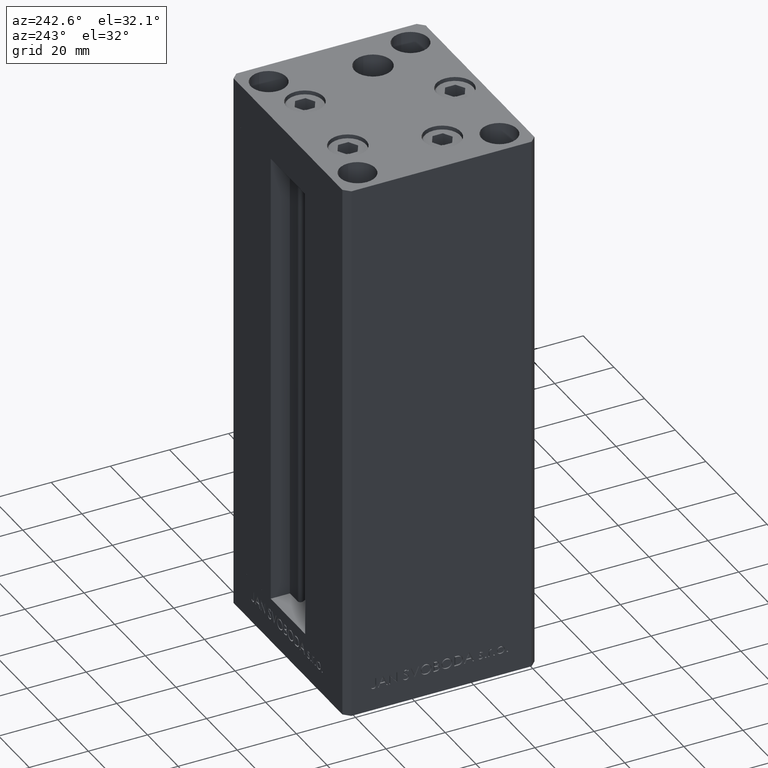
[diagram: clean part render]
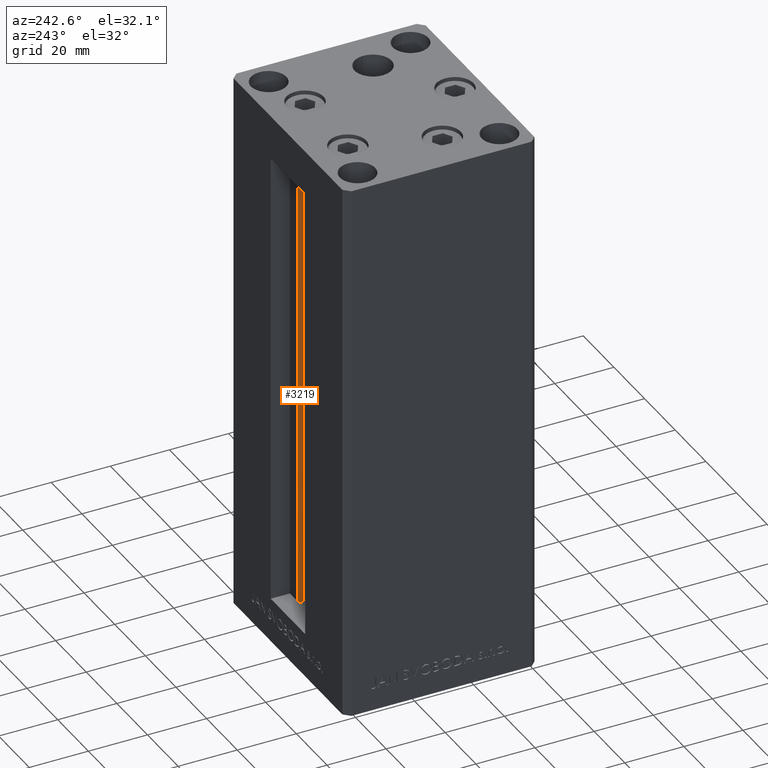
[diagram: same view with one face highlighted and labeled with its STEP entity id]
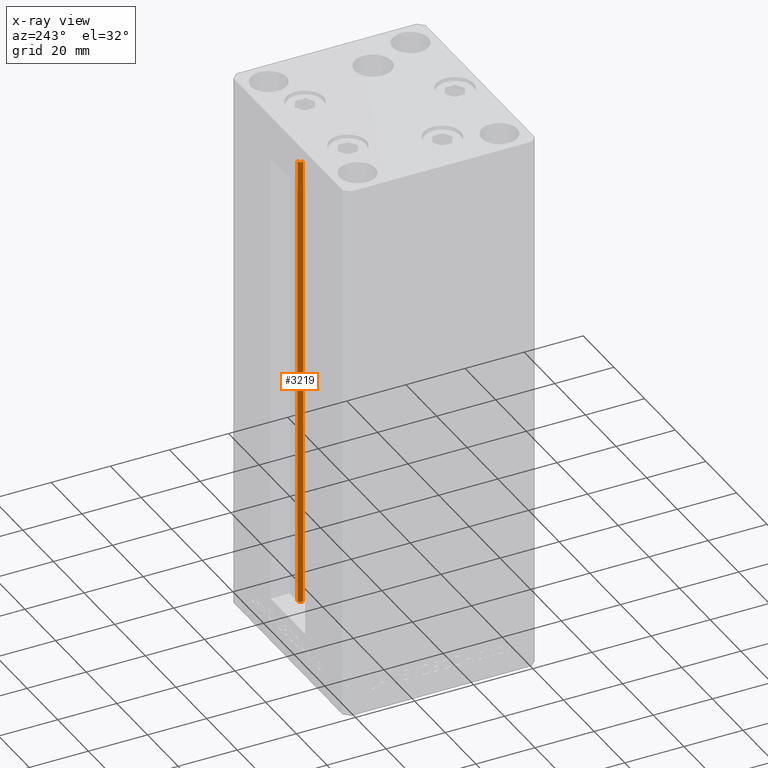
[diagram: x-ray of the same camera — body ghosted, the highlighted face saturated]
A machine part, auxiliary view. The second image highlights one B-rep face of the part: STEP entity #3219.
The next image is the same camera in x-ray: the body ghosted, the highlighted face saturated — about 0% of this face is hidden behind the body in this view.
In plain terms, the highlighted cylindrical surface (edge-blend (fillet) strip) has radius 0.9333 mm, axis along (0, 0, 1).
Its self-contained STEP definition (entity closure, byte-faithful):
#584 = CARTESIAN_POINT ( 'NONE',  ( 5.375042956467948052, 24.59999999999899245, 156.0000000000000000 ) ) ;
#913 = FACE_OUTER_BOUND ( 'NONE', #11792, .T. ) ;
#3219 = ADVANCED_FACE ( 'NONE', ( #913 ), #4909, .T. ) ;
#3525 = CARTESIAN_POINT ( 'NONE',  ( 6.183333333334001480, 25.99999999999999289, 0.000000000000000000 ) ) ;
#3859 = VECTOR ( 'NONE', #18742, 1000.000000000000000 ) ;
#4909 = CYLINDRICAL_SURFACE ( 'NONE', #47293, 0.9333333333340008142 ) ;
#5440 = ORIENTED_EDGE ( 'NONE', *, *, #33285, .T. ) ;
#7492 = AXIS2_PLACEMENT_3D ( 'NONE', #47241, #38528, #12144 ) ;
#7529 = LINE ( 'NONE', #3525, #3859 ) ;
#9556 = VERTEX_POINT ( 'NONE', #23186 ) ;
#10290 = ORIENTED_EDGE ( 'NONE', *, *, #20399, .T. ) ;
#10906 = DIRECTION ( 'NONE',  ( -0.000000000000000000, -0.000000000000000000, 1.000000000000000000 ) ) ;
#11792 = EDGE_LOOP ( 'NONE', ( #34967, #25026, #10290, #5440 ) ) ;
#12144 = DIRECTION ( 'NONE',  ( 1.000000000000000000, 0.000000000000000000, 0.000000000000000000 ) ) ;
#13656 = LINE ( 'NONE', #25118, #38245 ) ;
#13737 = CARTESIAN_POINT ( 'NONE',  ( 6.183333333334001480, 25.99999999999999289, 156.0000000000000000 ) ) ;
#15912 = EDGE_CURVE ( 'NONE', #34104, #9556, #18223, .T. ) ;
#18223 = CIRCLE ( 'NONE', #40479, 0.9333333333340008142 ) ;
#18742 = DIRECTION ( 'NONE',  ( -0.000000000000000000, -0.000000000000000000, 1.000000000000000000 ) ) ;
#20399 = EDGE_CURVE ( 'NONE', #34104, #31415, #13656, .T. ) ;
#23186 = CARTESIAN_POINT ( 'NONE',  ( 6.183333333334001480, 25.99999999999999289, 0.000000000000000000 ) ) ;
#25026 = ORIENTED_EDGE ( 'NONE', *, *, #15912, .F. ) ;
#25118 = CARTESIAN_POINT ( 'NONE',  ( 5.375042956467947164, 24.59999999999899245, 0.000000000000000000 ) ) ;
#28413 = DIRECTION ( 'NONE',  ( 1.000000000000000000, 0.000000000000000000, 0.000000000000000000 ) ) ;
#29615 = CARTESIAN_POINT ( 'NONE',  ( 5.375042956467947164, 24.59999999999899245, 0.000000000000000000 ) ) ;
#30576 = CIRCLE ( 'NONE', #7492, 0.9333333333340008142 ) ;
#31415 = VERTEX_POINT ( 'NONE', #584 ) ;
#33285 = EDGE_CURVE ( 'NONE', #31415, #34889, #30576, .T. ) ;
#34104 = VERTEX_POINT ( 'NONE', #29615 ) ;
#34811 = DIRECTION ( 'NONE',  ( -0.000000000000000000, -0.000000000000000000, 1.000000000000000000 ) ) ;
#34889 = VERTEX_POINT ( 'NONE', #13737 ) ;
#34967 = ORIENTED_EDGE ( 'NONE', *, *, #46692, .F. ) ;
#38245 = VECTOR ( 'NONE', #10906, 1000.000000000000000 ) ;
#38528 = DIRECTION ( 'NONE',  ( 0.000000000000000000, 0.000000000000000000, -1.000000000000000000 ) ) ;
#40091 = DIRECTION ( 'NONE',  ( -0.000000000000000000, -0.000000000000000000, -1.000000000000000000 ) ) ;
#40479 = AXIS2_PLACEMENT_3D ( 'NONE', #46831, #40091, #28413 ) ;
#42534 = CARTESIAN_POINT ( 'NONE',  ( 6.183333333334001480, 25.06666666666599141, 0.000000000000000000 ) ) ;
#46692 = EDGE_CURVE ( 'NONE', #9556, #34889, #7529, .T. ) ;
#46764 = DIRECTION ( 'NONE',  ( 1.000000000000000000, 0.000000000000000000, 0.000000000000000000 ) ) ;
#46831 = CARTESIAN_POINT ( 'NONE',  ( 6.183333333334001480, 25.06666666666599141, 0.000000000000000000 ) ) ;
#47241 = CARTESIAN_POINT ( 'NONE',  ( 6.183333333334001480, 25.06666666666599141, 156.0000000000000000 ) ) ;
#47293 = AXIS2_PLACEMENT_3D ( 'NONE', #42534, #34811, #46764 ) ;